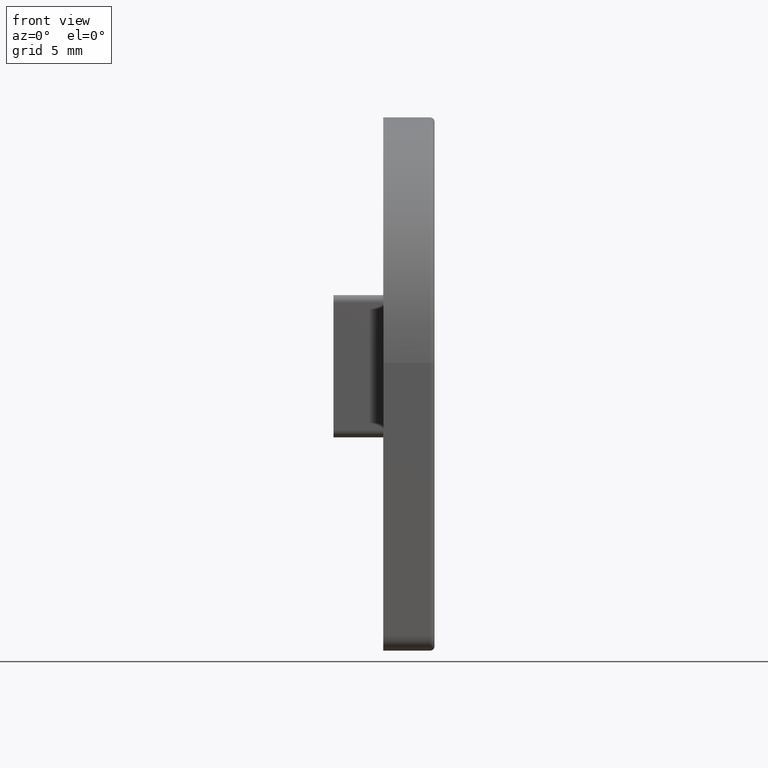
[diagram: clean part render]
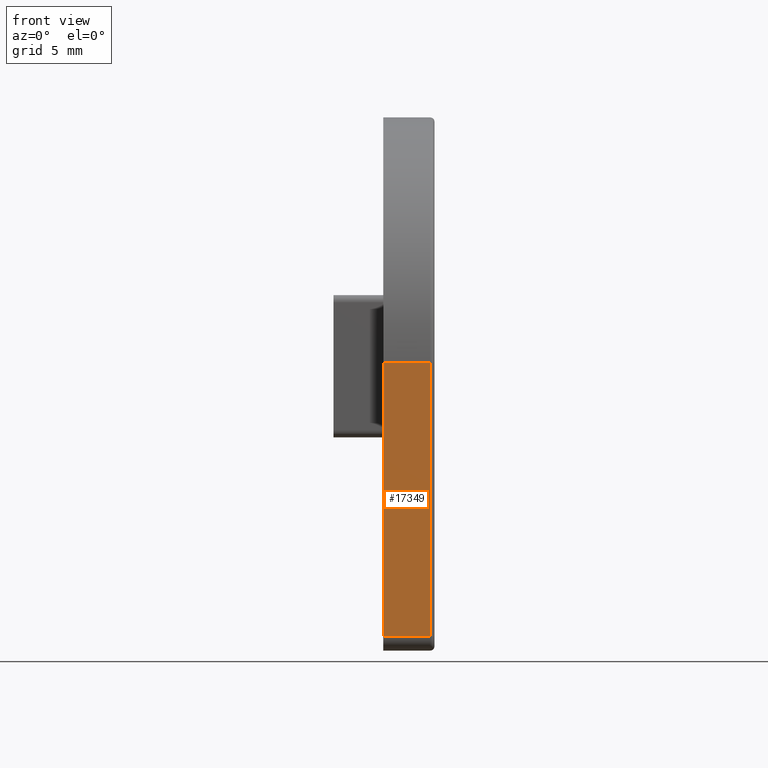
[diagram: same view with one face highlighted and labeled with its STEP entity id]
A machine part, front view. The second image highlights one B-rep face of the part: STEP entity #17349.
In plain terms, the highlighted planar face has unit normal (-0, 1, 0).
Its self-contained STEP definition (entity closure, byte-faithful):
#1026 = ORIENTED_EDGE ( 'NONE', *, *, #15467, .T. ) ;
#2128 = ORIENTED_EDGE ( 'NONE', *, *, #12917, .T. ) ;
#2611 = VECTOR ( 'NONE', #12425, 1000.000000000000000 ) ;
#2920 = CARTESIAN_POINT ( 'NONE',  ( 3.600000000000000100, -17.25000000000000000, 20.24999999999999600 ) ) ;
#3336 = VERTEX_POINT ( 'NONE', #5072 ) ;
#3677 = VERTEX_POINT ( 'NONE', #11213 ) ;
#3931 = EDGE_CURVE ( 'NONE', #15551, #3677, #17691, .T. ) ;
#4262 = ORIENTED_EDGE ( 'NONE', *, *, #15869, .T. ) ;
#4919 = ORIENTED_EDGE ( 'NONE', *, *, #3931, .T. ) ;
#4949 = FACE_OUTER_BOUND ( 'NONE', #17317, .T. ) ;
#5072 = CARTESIAN_POINT ( 'NONE',  ( 0.0000000000000000000, -17.25000000000000000, 1.000000000000000900 ) ) ;
#5405 = LINE ( 'NONE', #2920, #6265 ) ;
#6265 = VECTOR ( 'NONE', #22512, 1000.000000000000000 ) ;
#6675 = CARTESIAN_POINT ( 'NONE',  ( 3.600000000000000100, -17.25000000000000000, 20.24999999999999600 ) ) ;
#7970 = VECTOR ( 'NONE', #10960, 1000.000000000000000 ) ;
#8592 = PLANE ( 'NONE',  #13233 ) ;
#8685 = DIRECTION ( 'NONE',  ( -0.0000000000000000000, -0.0000000000000000000, 1.000000000000000000 ) ) ;
#9320 = VECTOR ( 'NONE', #8685, 1000.000000000000000 ) ;
#10371 = DIRECTION ( 'NONE',  ( -0.0000000000000000000, 1.000000000000000000, 0.0000000000000000000 ) ) ;
#10537 = CARTESIAN_POINT ( 'NONE',  ( 0.0000000000000000000, -17.25000000000000000, 20.24999999999999600 ) ) ;
#10960 = DIRECTION ( 'NONE',  ( 1.000000000000000000, 0.0000000000000000000, -0.0000000000000000000 ) ) ;
#11149 = CARTESIAN_POINT ( 'NONE',  ( 0.0000000000000000000, -17.25000000000000000, 20.24999999999999600 ) ) ;
#11213 = CARTESIAN_POINT ( 'NONE',  ( 3.299999999999999800, -17.25000000000000000, 20.24999999999999600 ) ) ;
#11856 = VERTEX_POINT ( 'NONE', #11149 ) ;
#12425 = DIRECTION ( 'NONE',  ( 0.0000000000000000000, 0.0000000000000000000, -1.000000000000000000 ) ) ;
#12917 = EDGE_CURVE ( 'NONE', #3336, #15551, #22954, .T. ) ;
#13233 = AXIS2_PLACEMENT_3D ( 'NONE', #6675, #10371, #22808 ) ;
#13834 = CARTESIAN_POINT ( 'NONE',  ( 3.299999999999999800, -17.25000000000000000, 20.24999999999999600 ) ) ;
#14419 = CARTESIAN_POINT ( 'NONE',  ( 3.299999999999999800, -17.25000000000000000, 1.000000000000000900 ) ) ;
#15128 = LINE ( 'NONE', #10537, #2611 ) ;
#15467 = EDGE_CURVE ( 'NONE', #11856, #3336, #15128, .T. ) ;
#15551 = VERTEX_POINT ( 'NONE', #14419 ) ;
#15869 = EDGE_CURVE ( 'NONE', #3677, #11856, #5405, .T. ) ;
#17317 = EDGE_LOOP ( 'NONE', ( #1026, #2128, #4919, #4262 ) ) ;
#17349 = ADVANCED_FACE ( 'NONE', ( #4949 ), #8592, .F. ) ;
#17691 = LINE ( 'NONE', #13834, #9320 ) ;
#18237 = CARTESIAN_POINT ( 'NONE',  ( 3.600000000000000100, -17.25000000000000000, 1.000000000000000900 ) ) ;
#22512 = DIRECTION ( 'NONE',  ( -1.000000000000000000, -0.0000000000000000000, -0.0000000000000000000 ) ) ;
#22808 = DIRECTION ( 'NONE',  ( 0.0000000000000000000, -0.0000000000000000000, 1.000000000000000000 ) ) ;
#22954 = LINE ( 'NONE', #18237, #7970 ) ;